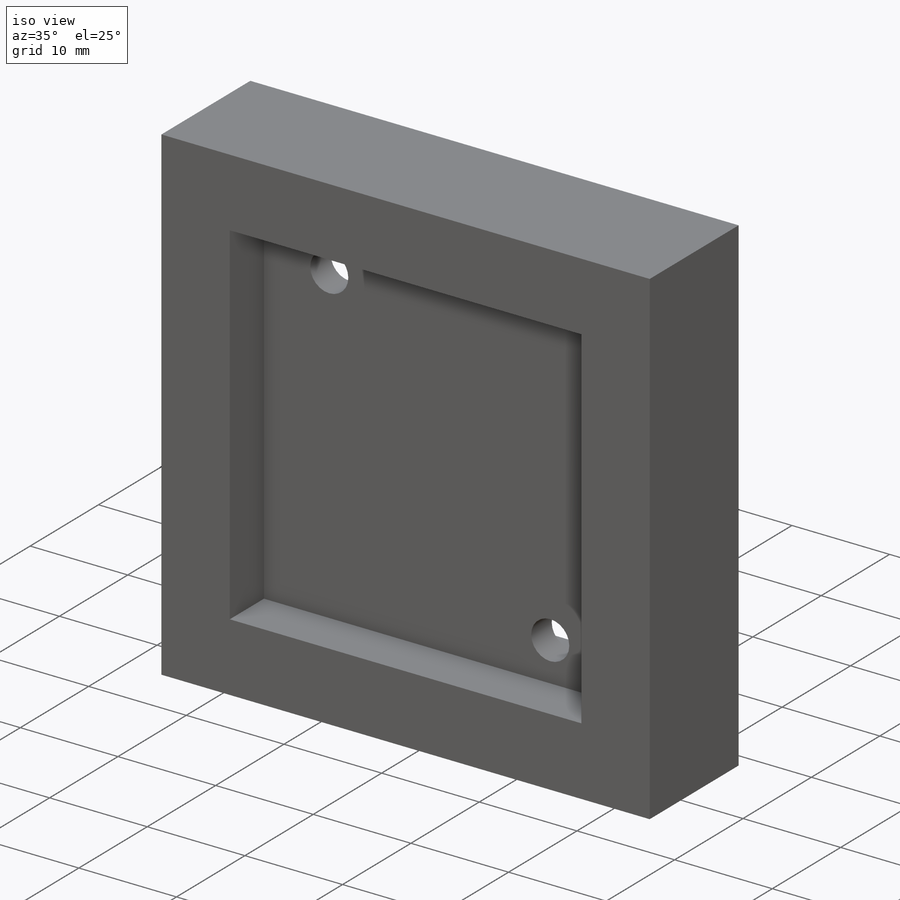
[diagram: iso view]
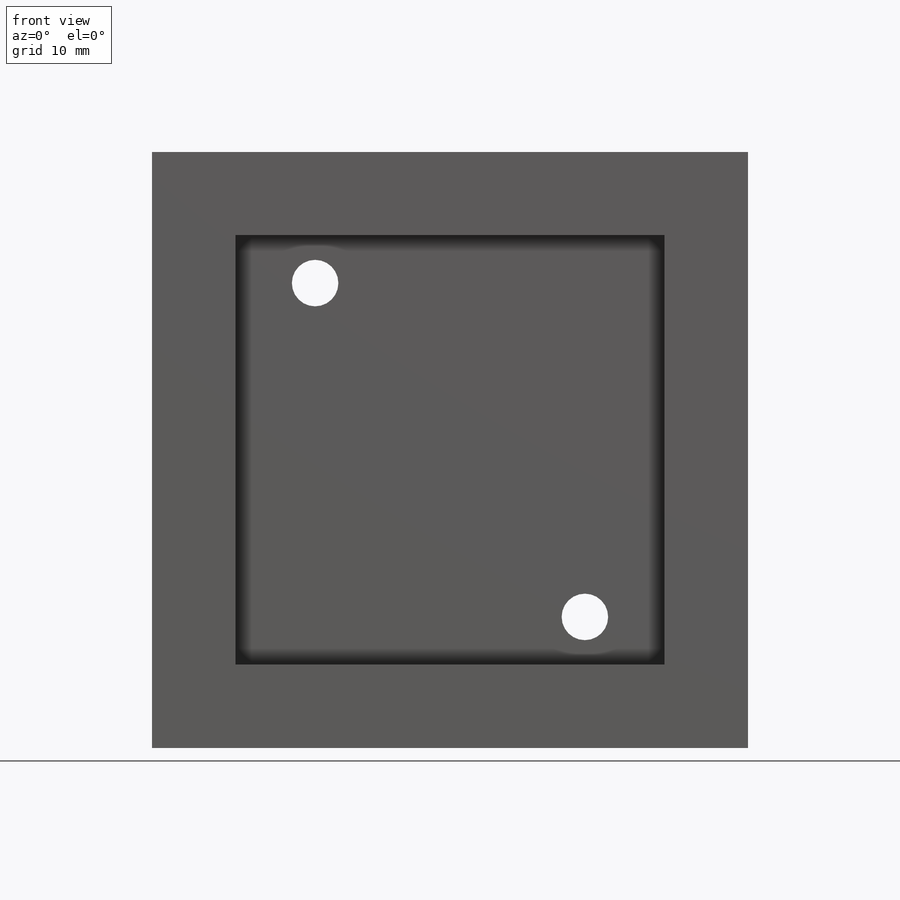
[diagram: front view]
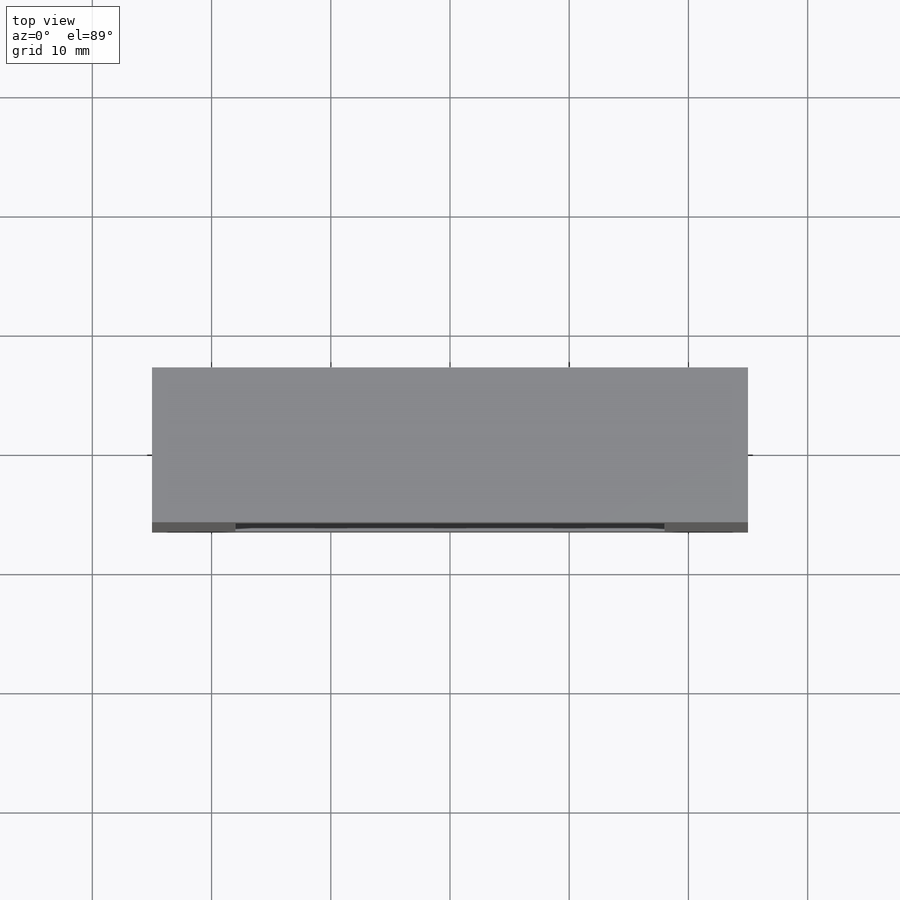
[diagram: top view]
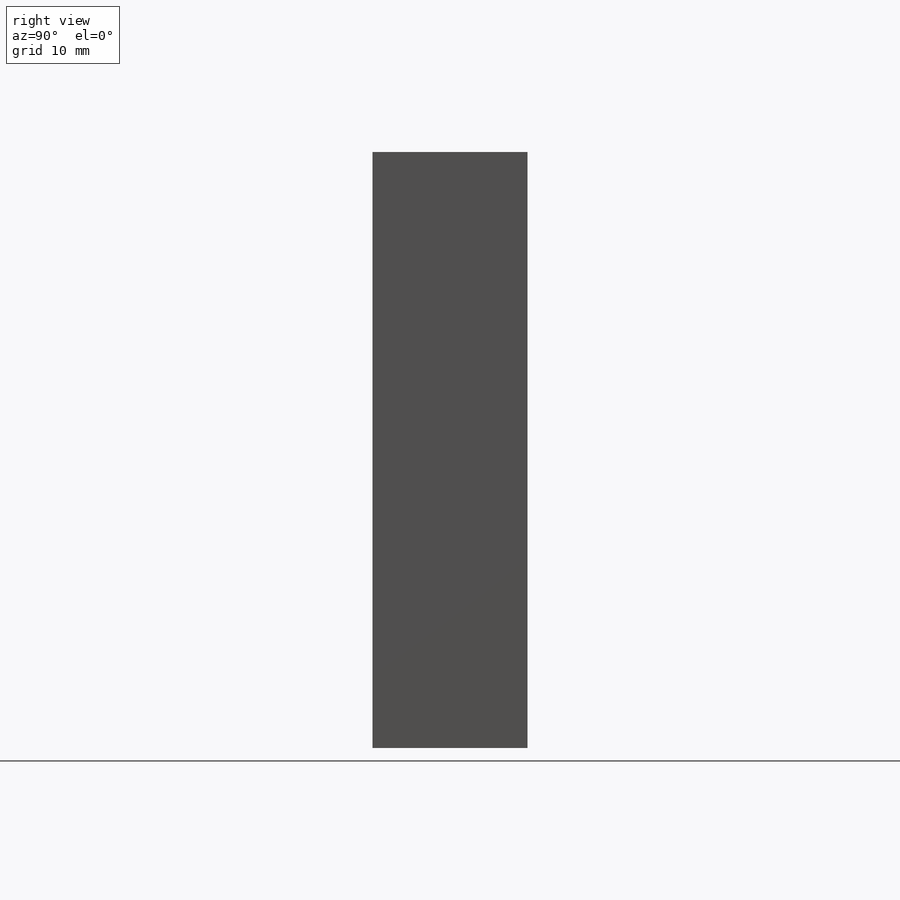
[diagram: right view]
SOLIDWORKS PART (.sldprt)
format: sldprt  version: not decoded by parser v0  size: 197,120 bytes
history: native  units: mm
features: sketch x6, plane x3, cut_extrude x2, material x1, extrude x1, hole x1 (+9 scaffold rows collapsed)
feature tree (23):
  scaffold x9  (default folders/planes/origin — collapsed)
  material  "Material <not specified>"
  plane  "Plan de face"
  plane  "Plan de dessus"
  plane  "Plan de droite"
  sketch  "Esquisse1"  dims[D1=50.0mm]
  extrude  "Boss.-Extru.1"  Depth=6.5mm
  sketch  "Esquisse2"  dims[D1=7.0mm D2=7.0mm]
  cut_extrude  "Enlèv. mat.-Extru.1"  Depth=5mm
  sketch  "Esquisse3"  dims[D1=7.0mm D2=7.0mm]
  cut_extrude  "Enlèv. mat.-Extru.2"  Depth=5mm
  sketch  "Esquisse4"  dims[D1=36.0mm D2=28.0mm]
  hole  "Dégagement M3.51"  Diameter=3.9mm Depth=8mm
  sketch  "Esquisse6"
  sketch  "Esquisse7"  dims[hole-wizard template sketch: 60 standard entries collapsed; hole parameters kept: c18.Profondeur du perçage jusqu'au prochain=8.0mm]
decode coverage: 9 of 10 modeling features carry decoded parameters
note: ~ marks probable driven/reference dimensions
note: suppression state not decoded; provenance and decode notes live in map.json
